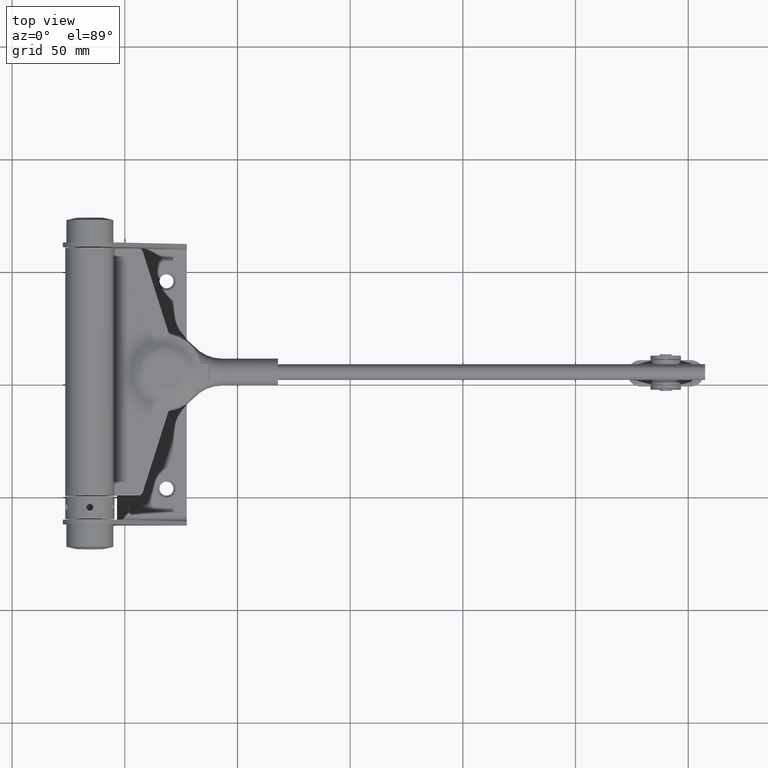
[diagram: clean part render]
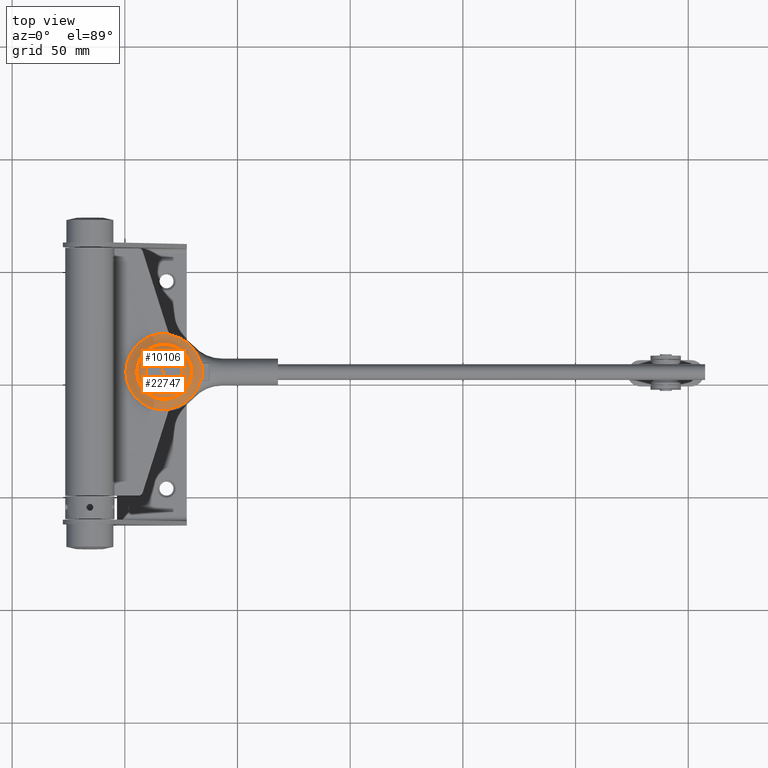
[diagram: same view with one multi-face feature highlighted, each face labeled with its STEP entity id]
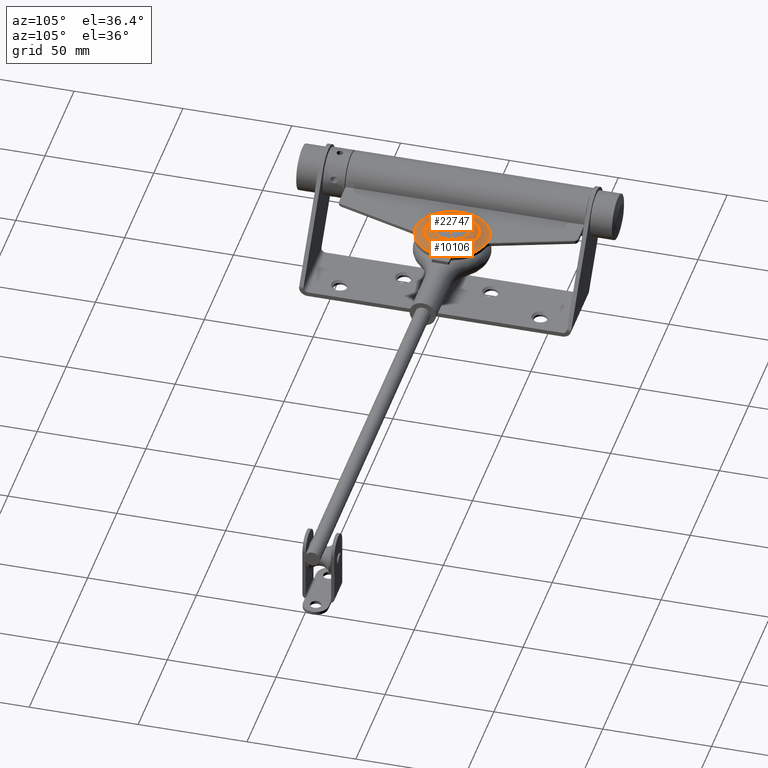
[diagram: same view with one multi-face feature highlighted, each face labeled with its STEP entity id]
A machine part, top view. The highlighted faces form ONE feature: a constant-radius fillet chain: 2 tangent blend faces with common blend radius 7.5 mm. The faces share edges in the B-rep.
A second angle (auxiliary view) of the same feature is appended — it is thin or edge-on in the first view.
Their STEP definitions:
[1] entity #10106 (Torus):
#44 = CARTESIAN_POINT ( 'NONE',  ( -1.013852824246159967, 16.22593871225432949, 36.15283462829314942 ) ) ;
#105 = CARTESIAN_POINT ( 'NONE',  ( -1.000992291606005669, -3.603870759718173833, 49.47159259021671573 ) ) ;
#116 = AXIS2_PLACEMENT_3D ( 'NONE', #12519, #19828, #8712 ) ;
#1036 = TOROIDAL_SURFACE ( 'NONE', #17215, 17.00000000000001421, 8.000000000000033751 ) ;
#1089 = CARTESIAN_POINT ( 'NONE',  ( -1.000000000000000888, 3.541316839253950466, 49.62705852049687394 ) ) ;
#1174 = ORIENTED_EDGE ( 'NONE', *, *, #6753, .T. ) ;
#1553 = CARTESIAN_POINT ( 'NONE',  ( -1.013852824246159967, -16.22593871225432594, 36.15283462829325600 ) ) ;
#1600 = DIRECTION ( 'NONE',  ( 0.000000000000000000, -2.366582715663018601E-30, 1.000000000000000000 ) ) ;
#1786 = ORIENTED_EDGE ( 'NONE', *, *, #4238, .T. ) ;
#1861 = AXIS2_PLACEMENT_3D ( 'NONE', #10559, #12187, #3328 ) ;
#2317 = DIRECTION ( 'NONE',  ( 0.000000000000000000, 2.366582715663018951E-30, -1.000000000000000000 ) ) ;
#2484 = EDGE_CURVE ( 'NONE', #5657, #21160, #14136, .T. ) ;
#2807 = CARTESIAN_POINT ( 'NONE',  ( -1.003872485515680868, 3.695590443100869926, 49.33156800678213472 ) ) ;
#2953 = EDGE_LOOP ( 'NONE', ( #12626, #8097, #4157, #1174, #14622, #13850, #17049, #11875 ) ) ;
#3328 = DIRECTION ( 'NONE',  ( 0.000000000000000000, 2.366582715663018951E-30, -1.000000000000000000 ) ) ;
#3576 = CARTESIAN_POINT ( 'NONE',  ( -1.003871690769950087, -3.695569333477964236, 49.33158341340988784 ) ) ;
#3839 = DIRECTION ( 'NONE',  ( 0.000000000000000000, -2.366582715663018951E-30, 1.000000000000000000 ) ) ;
#4157 = ORIENTED_EDGE ( 'NONE', *, *, #14776, .T. ) ;
#4238 = EDGE_CURVE ( 'NONE', #5371, #5371, #8194, .T. ) ;
#5250 = CARTESIAN_POINT ( 'NONE',  ( -1.013212811317366624, -4.091048809072273862, 49.02620527335597700 ) ) ;
#5371 = VERTEX_POINT ( 'NONE', #16894 ) ;
#5441 = CARTESIAN_POINT ( 'NONE',  ( -1.013852824243544060, 0.000000000000000000, 33.00000000000010658 ) ) ;
#5645 = CARTESIAN_POINT ( 'NONE',  ( -1.013852824246048945, -4.250420168067234883, 48.97358387094439536 ) ) ;
#5657 = VERTEX_POINT ( 'NONE', #12297 ) ;
#5668 = VERTEX_POINT ( 'NONE', #13962 ) ;
#6244 = CARTESIAN_POINT ( 'NONE',  ( -1.000000000000000888, 3.567470922839504510, 49.54660946921848108 ) ) ;
#6404 = CARTESIAN_POINT ( 'NONE',  ( -1.000995171047844634, 3.603966654483214072, 49.47142937117654071 ) ) ;
#6464 = DIRECTION ( 'NONE',  ( -2.465190328815644376E-32, 2.366582715663018951E-30, -1.000000000000000000 ) ) ;
#6708 = CIRCLE ( 'NONE', #8062, 16.52941176470584850 ) ;
#6753 = EDGE_CURVE ( 'NONE', #19596, #15936, #23029, .T. ) ;
#6783 = CARTESIAN_POINT ( 'NONE',  ( -9.000000000000250466, 0.000000000000000000, 33.00000000000021316 ) ) ;
#7456 = EDGE_LOOP ( 'NONE', ( #1786 ) ) ;
#7507 = EDGE_CURVE ( 'NONE', #5668, #12479, #14901, .T. ) ;
#8062 = AXIS2_PLACEMENT_3D ( 'NONE', #5441, #14688, #3839 ) ;
#8097 = ORIENTED_EDGE ( 'NONE', *, *, #2484, .T. ) ;
#8194 = CIRCLE ( 'NONE', #116, 12.20000000000008278 ) ;
#8331 = CARTESIAN_POINT ( 'NONE',  ( -1.013852824246048723, 4.168784581348924156, 48.99530633141557701 ) ) ;
#8333 = EDGE_CURVE ( 'NONE', #22843, #5668, #16861, .T. ) ;
#8712 = DIRECTION ( 'NONE',  ( 0.000000000000000000, 2.366582715663018951E-30, -1.000000000000000000 ) ) ;
#9078 = CARTESIAN_POINT ( 'NONE',  ( -1.009271961804559581, -3.874397582213107150, 49.15488180832885234 ) ) ;
#9617 = DIRECTION ( 'NONE',  ( -1.000000000000000000, -4.307734363867621767E-30, 2.465190328815644376E-32 ) ) ;
#9757 = EDGE_CURVE ( 'NONE', #5657, #16813, #19563, .T. ) ;
#9869 = CARTESIAN_POINT ( 'NONE',  ( -1.000000000000105027, 16.72603660887399357, 35.02097224554265154 ) ) ;
#10106 = ADVANCED_FACE ( 'NONE', ( #10986, #18668 ), #1036, .F. ) ;
#10359 = CARTESIAN_POINT ( 'NONE',  ( -1.004208916081962055, -16.58145534690621048, 35.22645105534882504 ) ) ;
#10491 = CARTESIAN_POINT ( 'NONE',  ( -1.013852824246159967, -16.22593871225432594, 36.15283462829325600 ) ) ;
#10544 = CARTESIAN_POINT ( 'NONE',  ( -1.000000000000000888, 3.541316839253950466, 49.62705852049687394 ) ) ;
#10559 = CARTESIAN_POINT ( 'NONE',  ( -1.000000000000105027, 0.000000000000000000, 33.00000000000010658 ) ) ;
#10958 = CARTESIAN_POINT ( 'NONE',  ( -1.005760272595730864, -3.751018974044513232, 49.26706340083986646 ) ) ;
#10986 = FACE_OUTER_BOUND ( 'NONE', #2953, .T. ) ;
#11605 = CARTESIAN_POINT ( 'NONE',  ( -1.005763394634536345, 3.751117200529108242, 49.26695889671039197 ) ) ;
#11659 = CARTESIAN_POINT ( 'NONE',  ( -1.000000000000105027, 16.90016216574371199, 34.83970616446359259 ) ) ;
#11875 = ORIENTED_EDGE ( 'NONE', *, *, #13497, .T. ) ;
#12006 = CARTESIAN_POINT ( 'NONE',  ( -1.000000000000000888, -3.541316839253958015, 49.62705852049686683 ) ) ;
#12187 = DIRECTION ( 'NONE',  ( 1.000000000000000000, 4.307734363867621767E-30, -2.465190328815644376E-32 ) ) ;
#12297 = CARTESIAN_POINT ( 'NONE',  ( -1.000000000000105027, -16.90016216574371910, 34.83970616446371338 ) ) ;
#12479 = VERTEX_POINT ( 'NONE', #44 ) ;
#12519 = CARTESIAN_POINT ( 'NONE',  ( -2.600000000000109335, 0.000000000000000000, 33.00000000000010658 ) ) ;
#12626 = ORIENTED_EDGE ( 'NONE', *, *, #9757, .F. ) ;
#12913 = CARTESIAN_POINT ( 'NONE',  ( -1.000000000000105027, 0.000000000000000000, 33.00000000000010658 ) ) ;
#13310 = CARTESIAN_POINT ( 'NONE',  ( -1.013852824246159745, 16.27384641532844967, 35.90627952928800681 ) ) ;
#13497 = EDGE_CURVE ( 'NONE', #12479, #16813, #18371, .T. ) ;
#13850 = ORIENTED_EDGE ( 'NONE', *, *, #8333, .T. ) ;
#13962 = CARTESIAN_POINT ( 'NONE',  ( -1.013852824246048945, 4.250420168067221560, 48.97358387094440957 ) ) ;
#14136 = B_SPLINE_CURVE_WITH_KNOTS ( 'NONE', 3,
 ( #17830, #16057, #10359, #17664, #23176, #1553 ),
 .UNSPECIFIED., .F., .F.,
 ( 4, 2, 4 ),
 ( 7.757919228897728493E-18, 0.0007474981209224127940, 0.001494996241844817782 ),
 .UNSPECIFIED. ) ;
#14410 = DIRECTION ( 'NONE',  ( -1.000000000000000000, -4.307734363867621767E-30, 2.465190328815644376E-32 ) ) ;
#14425 = CARTESIAN_POINT ( 'NONE',  ( -1.000000000000000888, -3.567471755631975050, 49.54660690757781794 ) ) ;
#14493 = CARTESIAN_POINT ( 'NONE',  ( -1.013852824244466877, 0.000000000000000000, 33.00000000000010658 ) ) ;
#14622 = ORIENTED_EDGE ( 'NONE', *, *, #17334, .T. ) ;
#14688 = DIRECTION ( 'NONE',  ( -1.000000000000000000, -4.307734363867621767E-30, 2.465190328815644376E-32 ) ) ;
#14776 = EDGE_CURVE ( 'NONE', #21160, #19596, #6708, .T. ) ;
#14901 = CIRCLE ( 'NONE', #21330, 16.52941176470590534 ) ;
#15260 = CARTESIAN_POINT ( 'NONE',  ( -1.010932428586830190, 3.944004154476978385, 49.10571400989192625 ) ) ;
#15936 = VERTEX_POINT ( 'NONE', #12006 ) ;
#16057 = CARTESIAN_POINT ( 'NONE',  ( -1.000000000000112133, -16.72607708848494923, 35.02093010594776246 ) ) ;
#16116 = CARTESIAN_POINT ( 'NONE',  ( -1.013852824246049167, -4.168783464700015706, 48.99530662854531471 ) ) ;
#16183 = CARTESIAN_POINT ( 'NONE',  ( -1.000000000000000888, -3.541316839253958015, 49.62705852049686683 ) ) ;
#16410 = CARTESIAN_POINT ( 'NONE',  ( -1.013852824246048945, -4.250420168067234883, 48.97358387094439536 ) ) ;
#16813 = VERTEX_POINT ( 'NONE', #20403 ) ;
#16861 = B_SPLINE_CURVE_WITH_KNOTS ( 'NONE', 3,
 ( #1089, #6244, #6404, #2807, #11605, #19140, #15260, #22773, #8331, #18886 ),
 .UNSPECIFIED., .F., .F.,
 ( 4, 2, 2, 2, 4 ),
 ( 7.269816092100862986E-18, 0.0002537770540359279197, 0.0005075541080718485752, 0.0007613311621077683633, 0.001015108216143688260 ),
 .UNSPECIFIED. ) ;
#16894 = CARTESIAN_POINT ( 'NONE',  ( -2.600000000000109335, 2.887230913108902759E-29, 20.80000000000002203 ) ) ;
#17049 = ORIENTED_EDGE ( 'NONE', *, *, #7507, .T. ) ;
#17215 = AXIS2_PLACEMENT_3D ( 'NONE', #6783, #19195, #6464 ) ;
#17334 = EDGE_CURVE ( 'NONE', #15936, #22843, #19456, .T. ) ;
#17664 = CARTESIAN_POINT ( 'NONE',  ( -1.011195128086328499, -16.35439862718877535, 35.67167447354522380 ) ) ;
#17830 = CARTESIAN_POINT ( 'NONE',  ( -1.000000000000105027, -16.90016216574371910, 34.83970616446371338 ) ) ;
#18371 = B_SPLINE_CURVE_WITH_KNOTS ( 'NONE', 3,
 ( #20619, #13310, #22821, #22596, #9869, #11659 ),
 .UNSPECIFIED., .F., .F.,
 ( 4, 2, 4 ),
 ( 0.000000000000000000, 0.0007477126641244278551, 0.001495425328248855710 ),
 .UNSPECIFIED. ) ;
#18668 = FACE_OUTER_BOUND ( 'NONE', #7456, .T. ) ;
#18886 = CARTESIAN_POINT ( 'NONE',  ( -1.013852824246048945, 4.250420168067221560, 48.97358387094440957 ) ) ;
#19140 = CARTESIAN_POINT ( 'NONE',  ( -1.009274626985203538, 3.874502701020719808, 49.15480144648160632 ) ) ;
#19195 = DIRECTION ( 'NONE',  ( 1.000000000000000000, 4.307734363867621767E-30, -2.465190328815644376E-32 ) ) ;
#19456 = CIRCLE ( 'NONE', #21323, 17.00000000000013500 ) ;
#19563 = CIRCLE ( 'NONE', #1861, 17.00000000000012790 ) ;
#19596 = VERTEX_POINT ( 'NONE', #5645 ) ;
#19828 = DIRECTION ( 'NONE',  ( 1.000000000000000000, 4.307734363867621767E-30, -2.465190328815644376E-32 ) ) ;
#20403 = CARTESIAN_POINT ( 'NONE',  ( -1.000000000000105027, 16.90016216574371199, 34.83970616446359259 ) ) ;
#20619 = CARTESIAN_POINT ( 'NONE',  ( -1.013852824246159967, 16.22593871225432949, 36.15283462829314942 ) ) ;
#21160 = VERTEX_POINT ( 'NONE', #10491 ) ;
#21323 = AXIS2_PLACEMENT_3D ( 'NONE', #12913, #9617, #2317 ) ;
#21330 = AXIS2_PLACEMENT_3D ( 'NONE', #14493, #14410, #1600 ) ;
#21959 = CARTESIAN_POINT ( 'NONE',  ( -1.010931492056240000, -3.943973211248112509, 49.10574004636416845 ) ) ;
#22596 = CARTESIAN_POINT ( 'NONE',  ( -1.004158466382718995, 16.58322607878895383, 35.22365478462252497 ) ) ;
#22773 = CARTESIAN_POINT ( 'NONE',  ( -1.013214695278326083, 4.091199738010978137, 49.02613296945036581 ) ) ;
#22821 = CARTESIAN_POINT ( 'NONE',  ( -1.011155900955648779, 16.35554411556877596, 35.66876109491092706 ) ) ;
#22843 = VERTEX_POINT ( 'NONE', #10544 ) ;
#23029 = B_SPLINE_CURVE_WITH_KNOTS ( 'NONE', 3,
 ( #16410, #16116, #5250, #21959, #9078, #10958, #3576, #105, #14425, #16183 ),
 .UNSPECIFIED., .F., .F.,
 ( 4, 2, 2, 2, 4 ),
 ( 0.000000000000000000, 0.0002534289706895266831, 0.0005068579413790533662, 0.0007602869120685800492, 0.001013715882758106732 ),
 .UNSPECIFIED. ) ;
#23176 = CARTESIAN_POINT ( 'NONE',  ( -1.013852824246159967, -16.27384278074687884, 35.90629823451845937 ) ) ;
[2] entity #22747 (Torus):
#18 = FACE_OUTER_BOUND ( 'NONE', #4069, .T. ) ;
#116 = AXIS2_PLACEMENT_3D ( 'NONE', #12519, #19828, #8712 ) ;
#871 = CARTESIAN_POINT ( 'NONE',  ( 2.999999999999995559, 0.000000000000000000, 33.00000000000010658 ) ) ;
#1308 = DIRECTION ( 'NONE',  ( 0.000000000000000000, 2.366582715663019652E-30, -1.000000000000000000 ) ) ;
#1309 = CIRCLE ( 'NONE', #20882, 8.000000000000055067 ) ;
#3277 = DIRECTION ( 'NONE',  ( 1.000000000000000000, 4.307734363867621767E-30, -2.465190328815644376E-32 ) ) ;
#4069 = EDGE_LOOP ( 'NONE', ( #21113 ) ) ;
#4238 = EDGE_CURVE ( 'NONE', #5371, #5371, #8194, .T. ) ;
#5371 = VERTEX_POINT ( 'NONE', #16894 ) ;
#5541 = ORIENTED_EDGE ( 'NONE', *, *, #15124, .T. ) ;
#5960 = TOROIDAL_SURFACE ( 'NONE', #21555, 8.000000000000000000, 6.999999999999999112 ) ;
#8194 = CIRCLE ( 'NONE', #116, 12.20000000000008278 ) ;
#8352 = DIRECTION ( 'NONE',  ( 1.000000000000000000, 4.307734363867621767E-30, -2.465190328815644376E-32 ) ) ;
#8712 = DIRECTION ( 'NONE',  ( 0.000000000000000000, 2.366582715663018951E-30, -1.000000000000000000 ) ) ;
#10264 = CARTESIAN_POINT ( 'NONE',  ( -4.000000000000107470, 0.000000000000000000, 33.00000000000010658 ) ) ;
#11948 = CARTESIAN_POINT ( 'NONE',  ( -4.000000000000107470, 1.893266172530428613E-29, 25.00000000000004974 ) ) ;
#12519 = CARTESIAN_POINT ( 'NONE',  ( -2.600000000000109335, 0.000000000000000000, 33.00000000000010658 ) ) ;
#13664 = DIRECTION ( 'NONE',  ( -2.465190328815644376E-32, 2.366582715663019301E-30, -1.000000000000000000 ) ) ;
#15124 = EDGE_CURVE ( 'NONE', #20773, #20773, #1309, .T. ) ;
#16894 = CARTESIAN_POINT ( 'NONE',  ( -2.600000000000109335, 2.887230913108902759E-29, 20.80000000000002203 ) ) ;
#18586 = EDGE_LOOP ( 'NONE', ( #5541 ) ) ;
#18767 = FACE_OUTER_BOUND ( 'NONE', #18586, .T. ) ;
#19828 = DIRECTION ( 'NONE',  ( 1.000000000000000000, 4.307734363867621767E-30, -2.465190328815644376E-32 ) ) ;
#20773 = VERTEX_POINT ( 'NONE', #11948 ) ;
#20882 = AXIS2_PLACEMENT_3D ( 'NONE', #10264, #3277, #1308 ) ;
#21113 = ORIENTED_EDGE ( 'NONE', *, *, #4238, .F. ) ;
#21555 = AXIS2_PLACEMENT_3D ( 'NONE', #871, #8352, #13664 ) ;
#22747 = ADVANCED_FACE ( 'NONE', ( #18, #18767 ), #5960, .T. ) ;